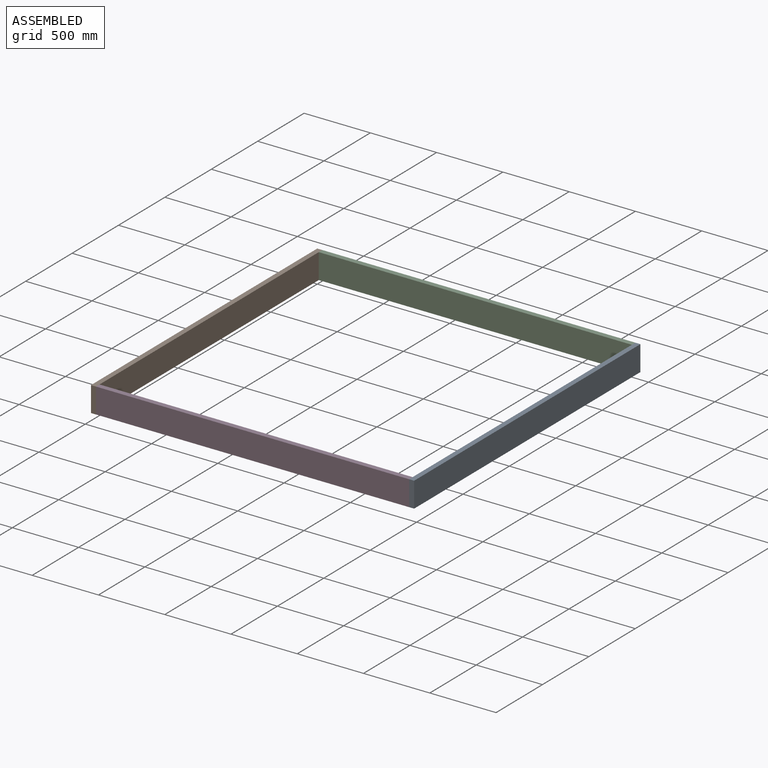
[diagram: assembled view]
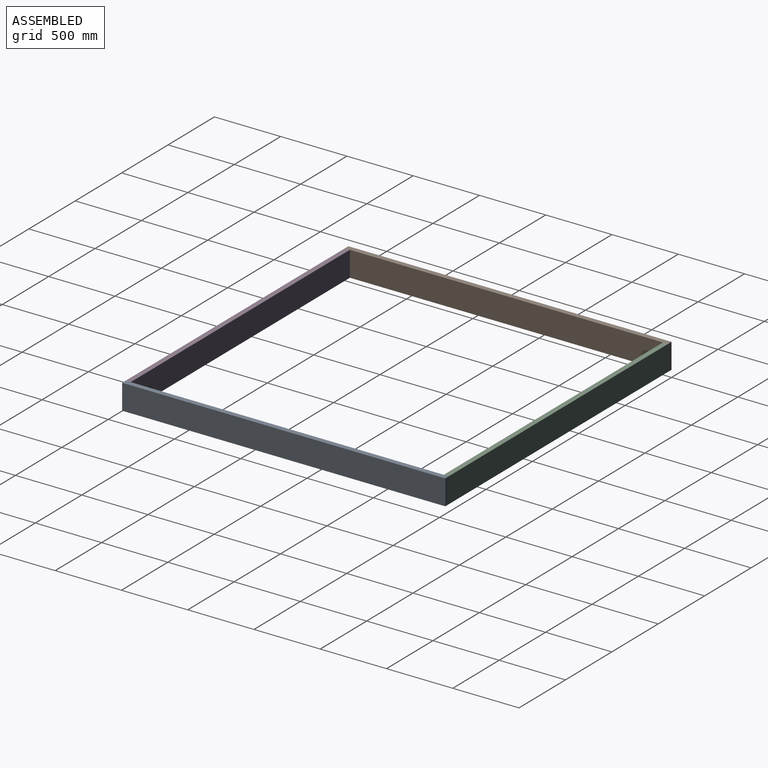
[diagram: assembled view, second angle]
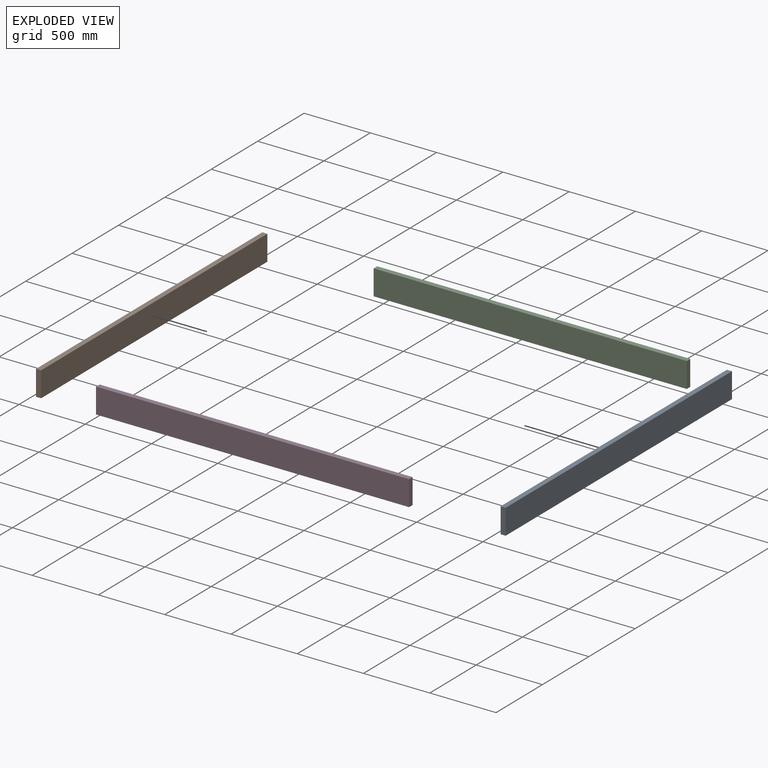
[diagram: exploded view]
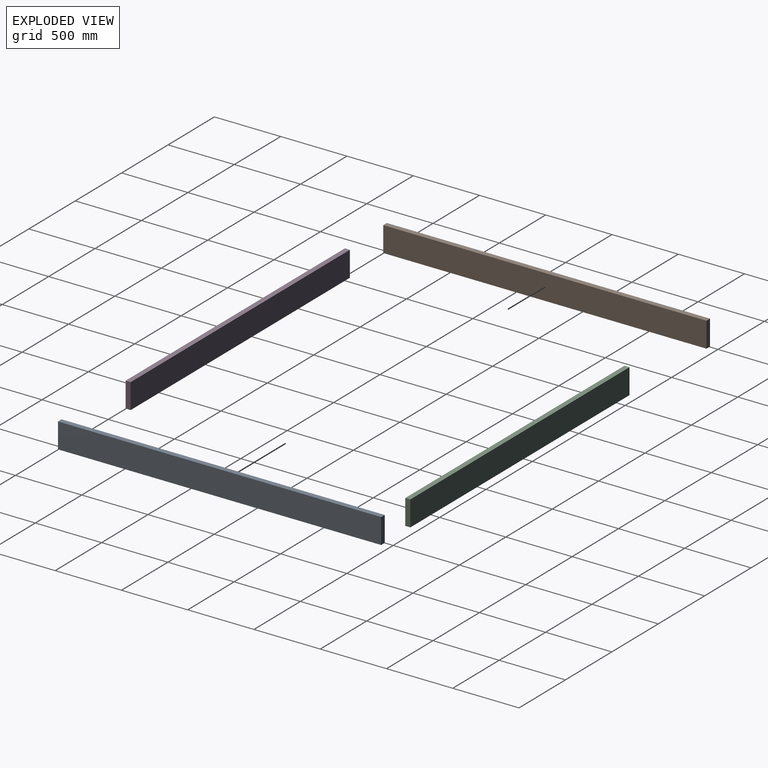
[diagram: exploded view, second angle]
ASSEMBLY  parts=4 mates=3
PART A: 6 faces, bbox 38.1x2438.4x190.5 mm
  f0: plane 2438.4x190.5mm, normal (-1,0,0), area 464515.2mm2, adj f1,f3,f4,f5
  f1: plane 2438.4x38.1mm, normal (0,0,-1), area 92903mm2, adj f0,f2,f4,f5
  f2: plane 2438.4x190.5mm, normal (1,0,0), area 464515.2mm2, adj f1,f3,f4,f5
  f3: plane 2438.4x38.1mm, normal (0,0,1), area 92903mm2, adj f0,f2,f4,f5
  f4: plane 190.5x38.1mm, normal (0,-1,0), area 7258.1mm2, adj f0,f1,f2,f3
  f5: plane 190.5x38.1mm, normal (0,1,0), area 7258.1mm2, adj f0,f1,f2,f3
PART B: same geometry as A
PART C: 6 faces, bbox 38.1x2362.2x190.5 mm
  f0: plane 2362.2x190.5mm, normal (-1,0,0), area 449999.1mm2, adj f1,f3,f4,f5
  f1: plane 2362.2x38.1mm, normal (0,0,-1), area 89999.8mm2, adj f0,f2,f4,f5
  f2: plane 2362.2x190.5mm, normal (1,0,0), area 449999.1mm2, adj f1,f3,f4,f5
  f3: plane 2362.2x38.1mm, normal (0,0,1), area 89999.8mm2, adj f0,f2,f4,f5
  f4: plane 190.5x38.1mm, normal (0,-1,0), area 7258.1mm2, adj f0,f1,f2,f3
  f5: plane 190.5x38.1mm, normal (0,1,0), area 7258.1mm2, adj f0,f1,f2,f3
PART D: same geometry as C
PLACE A t=(2400.3,0,0)mm
PLACE B at identity
PLACE C rot(axis=(0,0,1),90deg) t=(38.1,-38.1,0)mm
PLACE D rot(axis=(0,0,1),90deg) t=(38.1,-2438.4,0)mm
MATE planar A.f0 <-> C.f4  axis (-1,0,0) through (2400.3,0,190.5)mm
MATE planar D.f5 <-> B.f2  axis (-1,0,0) through (38.1,-2438.4,190.5)mm
MATE planar C.f5 <-> B.f2  axis (-1,0,0) through (38.1,0,190.5)mm
